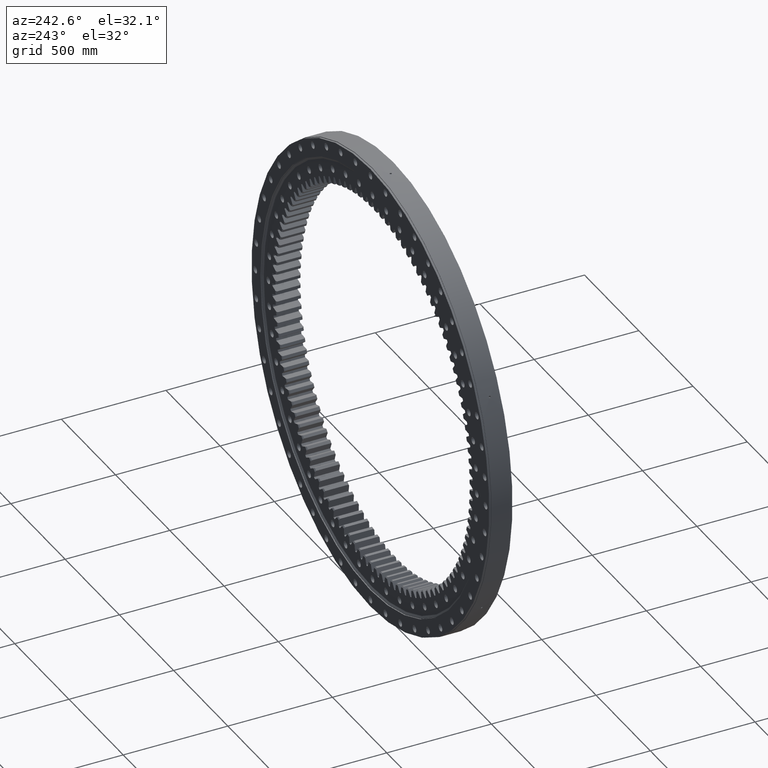
[diagram: clean part render]
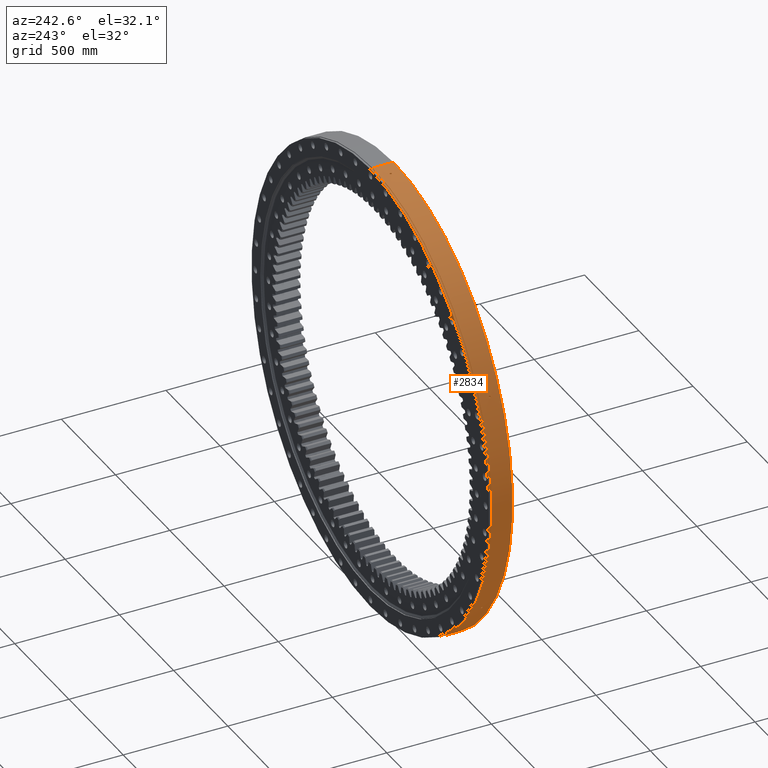
[diagram: same view with one face highlighted and labeled with its STEP entity id]
A machine part, auxiliary view. The second image highlights one B-rep face of the part: STEP entity #2834.
In plain terms, the highlighted cylindrical surface (partial cylindrical patch) has radius 1097.5 mm, axis along (0, -1, -0).
Its self-contained STEP definition (entity closure, byte-faithful):
#37 = DIRECTION ( 'NONE',  ( 5.551115123125782700E-017, -3.793472749288689700E-017, 1.000000000000000000 ) ) ;
#116 = CARTESIAN_POINT ( 'NONE',  ( -913.9983531601363900, -3.653221075930636700, -607.5468520026441900 ) ) ;
#207 = CARTESIAN_POINT ( 'NONE',  ( -985.9067901466742100, -2.765066982846177800, 482.1827982763670100 ) ) ;
#219 = CARTESIAN_POINT ( 'NONE',  ( -914.9056874165271400, -1.437042506694486700, -606.1795181664089100 ) ) ;
#263 = CARTESIAN_POINT ( 'NONE',  ( -911.0730735983328300, 3.665395689952945600, -611.9248949544651200 ) ) ;
#322 = CARTESIAN_POINT ( 'NONE',  ( -915.0302888720349300, -0.004604410396302612900, -605.9915880910176600 ) ) ;
#365 = CARTESIAN_POINT ( 'NONE',  ( -910.2214394108831400, 1.766153117482679900, -613.1909732783493600 ) ) ;
#374 = CARTESIAN_POINT ( 'NONE',  ( -982.3192627750760300, -2.316124068614225300E-008, 489.4436855857097200 ) ) ;
#689 = EDGE_LOOP ( 'NONE', ( #23213, #10348, #26129, #9866 ) ) ;
#787 = CARTESIAN_POINT ( 'NONE',  ( -982.3206432674303400, 0.5890485998995765900, 489.4443663618398000 ) ) ;
#798 = CARTESIAN_POINT ( 'NONE',  ( -912.5378995020402000, 4.499999983232279500, -609.7383307390179000 ) ) ;
#1109 = EDGE_CURVE ( 'NONE', #22896, #18330, #4989, .T. ) ;
#1141 = ORIENTED_EDGE ( 'NONE', *, *, #8543, .F. ) ;
#1239 = CARTESIAN_POINT ( 'NONE',  ( -915.0302968266446400, -2.316119924389100600E-008, -605.9915933971644800 ) ) ;
#1315 = CARTESIAN_POINT ( 'NONE',  ( -984.3178338321264400, 4.499999983232231500, 485.4118375153514600 ) ) ;
#1430 = CARTESIAN_POINT ( 'NONE',  ( -985.7534582128030300, 3.106787147588674800, 482.4897635423545200 ) ) ;
#1475 = CARTESIAN_POINT ( 'NONE',  ( -76.26932570167963400, -0.06349154273917784200, 1094.846838106214800 ) ) ;
#1545 = CARTESIAN_POINT ( 'NONE',  ( -986.2998584784061200, 0.0002739105558857477900, 481.3718296510459100 ) ) ;
#1585 = CARTESIAN_POINT ( 'NONE',  ( -72.36780016580453900, -4.500000016767684100, 1095.111637491822900 ) ) ;
#1838 = CARTESIAN_POINT ( 'NONE',  ( -910.0389320316016900, -0.3669906709228762900, -613.4633771851737300 ) ) ;
#1878 = CARTESIAN_POINT ( 'NONE',  ( -982.9579115456216400, -3.294402531885509700, 488.1597996851776900 ) ) ;
#1990 = CARTESIAN_POINT ( 'NONE',  ( -982.3218529169668000, -0.2514981093746388500, 489.4377634877358800 ) ) ;
#2033 = CARTESIAN_POINT ( 'NONE',  ( -75.27407875063740100, 2.828384377333859500, 1094.915564209302800 ) ) ;
#2048 = CARTESIAN_POINT ( 'NONE',  ( -68.72016813912141200, -3.294402531885272100, 1095.346422091994300 ) ) ;
#2071 = CARTESIAN_POINT ( 'NONE',  ( -67.40602675646908900, 1.177865457651629400, 1095.430496503789300 ) ) ;
#2162 = CARTESIAN_POINT ( 'NONE',  ( -67.29538970666170900, -0.2514981093709348100, 1095.434561062561400 ) ) ;
#2393 = CARTESIAN_POINT ( 'NONE',  ( -913.7961816037598100, 3.932038729790768200, -607.8534496682466400 ) ) ;
#2478 = DIRECTION ( 'NONE',  ( 5.551115123125782700E-017, -3.477350020181299200E-017, 1.000000000000000000 ) ) ;
#2570 = CARTESIAN_POINT ( 'NONE',  ( -986.2998616251126100, -0.001197594886368069400, 481.3718311277031600 ) ) ;
#2683 = CARTESIAN_POINT ( 'NONE',  ( -986.2998857379982400, -0.01755276374554877400, 481.3718786547948400 ) ) ;
#2704 = CARTESIAN_POINT ( 'NONE',  ( -914.1527883337825000, -3.431549365535419200, -607.3145009554203900 ) ) ;
#2790 = CARTESIAN_POINT ( 'NONE',  ( -985.3194361487727500, -3.931903492011158200, 483.3786156320769600 ) ) ;
#2804 = CARTESIAN_POINT ( 'NONE',  ( -915.0081998526879900, -0.6256154573444570000, -606.0243077831933100 ) ) ;
#2834 = ADVANCED_FACE ( 'NONE', ( #9518, #30062, #15549, #8700 ), #7877, .T. ) ;
#2848 = CARTESIAN_POINT ( 'NONE',  ( -910.7647910946448100, 3.179368269281404900, -612.3836586007282700 ) ) ;
#2960 = CARTESIAN_POINT ( 'NONE',  ( -910.0718148629449600, 0.8692179200563169300, -613.4125404365871600 ) ) ;
#3381 = CARTESIAN_POINT ( 'NONE',  ( -982.3192627750760300, -2.316124068614225300E-008, 489.4436855857097200 ) ) ;
#3961 = CARTESIAN_POINT ( 'NONE',  ( -5.868486117720982400E-015, 50.00000000000018500, 1.747108677692898100E-015 ) ) ;
#4048 = CARTESIAN_POINT ( 'NONE',  ( -985.8115134047013700, 2.962532599782218500, 482.3711464768900300 ) ) ;
#4087 = CARTESIAN_POINT ( 'NONE',  ( -76.26348067966030400, -0.2567128001458648900, 1094.847717071250100 ) ) ;
#4453 = CARTESIAN_POINT ( 'NONE',  ( -910.0636864029352200, -0.7327159428868192900, -613.4279300527642800 ) ) ;
#4487 = CARTESIAN_POINT ( 'NONE',  ( -982.9187859575646400, -3.209744189989990100, 488.2385789285842700 ) ) ;
#4540 = CARTESIAN_POINT ( 'NONE',  ( -73.54968862972964400, 4.146178172052867900, 1095.032633056343700 ) ) ;
#4570 = LINE ( 'NONE', #22469, #18230 ) ;
#4604 = CARTESIAN_POINT ( 'NONE',  ( -982.3196450843720400, -0.1107750201663606500, 489.4424631424344100 ) ) ;
#4643 = CARTESIAN_POINT ( 'NONE',  ( -75.54054835639667000, 2.468473075722514000, 1094.897229565538500 ) ) ;
#4664 = CARTESIAN_POINT ( 'NONE',  ( -68.63238051901193200, -3.209744189989848900, 1095.351927960502100 ) ) ;
#4685 = CARTESIAN_POINT ( 'NONE',  ( -68.18893718353885400, 2.765460220137770300, 1095.382454497346500 ) ) ;
#4772 = CARTESIAN_POINT ( 'NONE',  ( -67.29021577000645500, -0.1107750201643056800, 1095.434998850796800 ) ) ;
#4895 = EDGE_CURVE ( 'NONE', #10562, #21656, #14076, .T. ) ;
#4977 = CARTESIAN_POINT ( 'NONE',  ( -912.8651573828364000, 4.499999983232295400, -609.2485547087404700 ) ) ;
#4989 = B_SPLINE_CURVE_WITH_KNOTS ( 'NONE', 3,
 ( #7143, #12218, #25160, #9733, #27754, #12334, #30327, #14931, #32931, #17472, #2048, #20086, #4664, #22685, #7256, #25274, #9842, #27852, #12438, #30448, #15028, #33037, #17586, #2162, #20193, #4772, #22800, #7360, #25385, #9961, #27960, #12538, #30549, #15149 ),
 .UNSPECIFIED., .F., .F.,
 ( 4, 2, 2, 2, 2, 1, 1, 1, 2, 2, 2, 2, 2, 2, 2, 1, 1, 1, 2, 4 ),
 ( 0.0000000000000000000, 0.1250331954729593500, 0.1875497932094389900, 0.2188080920776799600, 0.2344372415118003700, 0.2422518162288597200, 0.2461591035873894100, 0.2481127472666542800, 0.2490895691062858800, 0.2500663909459174300, 0.3125829886823461300, 0.3750995864187748300, 0.4376161841552035900, 0.4688744830234181600, 0.4845036324575254800, 0.4923182071745789100, 0.4962254945331054900, 0.4981791382123685900, 0.4991559600520001400, 0.5001327818916316800 ),
 .UNSPECIFIED. ) ;
#5078 = CARTESIAN_POINT ( 'NONE',  ( 2.601341135008604100E-015, -22.16364734299516900, -7.744460120454373600E-016 ) ) ;
#5266 = CARTESIAN_POINT ( 'NONE',  ( -986.2998375697703800, -0.06357649274102340800, 481.3722466403592600 ) ) ;
#5282 = CARTESIAN_POINT ( 'NONE',  ( -914.2377434064957200, -3.294402531886514200, -607.1866224068198800 ) ) ;
#5378 = CARTESIAN_POINT ( 'NONE',  ( -984.5783949706922200, -4.500000016767765800, 484.8834717943866500 ) ) ;
#5381 = CARTESIAN_POINT ( 'NONE',  ( -984.3178338321264400, 4.499999983232231500, 485.4118375153514600 ) ) ;
#5390 = CARTESIAN_POINT ( 'NONE',  ( -915.0264632103010200, -0.2514981093664806500, -605.9967975748279500 ) ) ;
#5446 = CARTESIAN_POINT ( 'NONE',  ( -910.7550180371637200, 3.161731403690720900, -612.3981934056697600 ) ) ;
#5558 = CARTESIAN_POINT ( 'NONE',  ( -910.0310799738707600, 0.2391090795481765300, -613.4728444865407900 ) ) ;
#5601 = LINE ( 'NONE', #29065, #31394 ) ;
#5982 = CARTESIAN_POINT ( 'NONE',  ( -982.5751195479414300, 2.266285391154471800, 488.9365916808663400 ) ) ;
#6517 = CARTESIAN_POINT ( 'NONE',  ( -984.7336266233817200, 4.439742533584273500, 484.5678248661250800 ) ) ;
#6546 = DIRECTION ( 'NONE',  ( -5.551115123125783900E-017, 8.851436415006942600E-017, -1.000000000000000000 ) ) ;
#6558 = CARTESIAN_POINT ( 'NONE',  ( -76.26969609074194500, 0.0003013362411627479000, 1094.846647981330800 ) ) ;
#6628 = CARTESIAN_POINT ( 'NONE',  ( -985.8928044853022400, 2.738265013290725600, 482.2050035439830800 ) ) ;
#6634 = ORIENTED_EDGE ( 'NONE', *, *, #7051, .F. ) ;
#6670 = CARTESIAN_POINT ( 'NONE',  ( -76.23388014724879700, -0.5867728063061658000, 1094.850474504257100 ) ) ;
#6816 = ORIENTED_EDGE ( 'NONE', *, *, #23480, .F. ) ;
#7021 = DIRECTION ( 'NONE',  ( 1.173697223544192200E-016, -1.000000000000000000, -3.494217355385783800E-017 ) ) ;
#7035 = CARTESIAN_POINT ( 'NONE',  ( -910.1606035168869100, -1.449327386706999100, -613.2858246215707800 ) ) ;
#7051 = EDGE_CURVE ( 'NONE', #16084, #27070, #27489, .T. ) ;
#7075 = CARTESIAN_POINT ( 'NONE',  ( -982.9095417438204500, -3.189160232434603300, 488.2571891373639200 ) ) ;
#7128 = CARTESIAN_POINT ( 'NONE',  ( -74.40593309462235500, 3.665419903802092700, 1094.974876245399200 ) ) ;
#7143 = CARTESIAN_POINT ( 'NONE',  ( -71.77993433008211400, -4.500000016767683200, 1095.150168254367400 ) ) ;
#7176 = B_SPLINE_CURVE_WITH_KNOTS ( 'NONE', 3,
 ( #17348, #32806, #19963, #4540, #22566, #7128, #25143, #9718, #27743, #12315, #30317, #14913, #32918, #17456, #2033, #20072, #4643, #22673, #7236, #25266, #9825, #27839, #12424, #30429, #15015 ),
 .UNSPECIFIED., .F., .F.,
 ( 4, 2, 2, 2, 2, 1, 1, 1, 2, 2, 2, 2, 2, 4 ),
 ( 0.0000000000000000000, 0.1250443681645245500, 0.1875665522467869200, 0.2500887363290493200, 0.2510656454553369400, 0.2520425545816245600, 0.2539963728341999000, 0.2579040093393506500, 0.2657192823496546400, 0.2813498283702639500, 0.3126109204114837500, 0.3751331044939232300, 0.4376552885763627700, 0.5001774726588023000 ),
 .UNSPECIFIED. ) ;
#7193 = CARTESIAN_POINT ( 'NONE',  ( -982.3192580813591800, -0.04507714349217240700, 489.4434691178562400 ) ) ;
#7236 = CARTESIAN_POINT ( 'NONE',  ( -75.92821301896074700, 1.766218312890730500, 1094.870378157965900 ) ) ;
#7256 = CARTESIAN_POINT ( 'NONE',  ( -68.61164149856722400, -3.189160232434481700, 1095.353227340951900 ) ) ;
#7277 = CARTESIAN_POINT ( 'NONE',  ( -69.51843838882214800, 3.932038729790762400, 1095.297431984198300 ) ) ;
#7360 = CARTESIAN_POINT ( 'NONE',  ( -67.28915106822913100, -0.04507714349119536200, 1095.435166684067600 ) ) ;
#7461 = VERTEX_POINT ( 'NONE', #8913 ) ;
#7479 = CARTESIAN_POINT ( 'NONE',  ( -915.0315766422445400, 0.5890485998996258800, -605.9924485505480300 ) ) ;
#7578 = VERTEX_POINT ( 'NONE', #32562 ) ;
#7707 = CARTESIAN_POINT ( 'NONE',  ( -67.28896594842734700, -2.316116566332855500E-008, 1095.435278982872200 ) ) ;
#7752 = B_SPLINE_CURVE_WITH_KNOTS ( 'NONE', 3,
 ( #19794, #32647, #24986, #9567, #27588, #12153, #30164, #14759, #32753, #17303, #1878, #19917, #4487, #22526, #7075, #25096, #9670, #27699, #12271, #30272, #14868, #32868, #17409, #1990, #20026, #4604, #22628, #7193, #25211, #9780, #27803, #12383, #30379, #14971 ),
 .UNSPECIFIED., .F., .F.,
 ( 4, 2, 2, 2, 2, 1, 1, 1, 2, 2, 2, 2, 2, 2, 2, 1, 1, 1, 2, 4 ),
 ( 0.0000000000000000000, 0.1250331954728097500, 0.1875497932092146400, 0.2188080920774170500, 0.2344372415115182400, 0.2422518162285656800, 0.2461591035870894500, 0.2481127472663513500, 0.2490895691059822900, 0.2500663909456132300, 0.3125829886821189800, 0.3750995864186247300, 0.4376161841551305400, 0.4688744830233819200, 0.4845036324575067200, 0.4923182071745690900, 0.4962254945331004400, 0.4981791382123660900, 0.4991559600519988600, 0.5001327818916315700 ),
 .UNSPECIFIED. ) ;
#7822 = B_SPLINE_CURVE_WITH_KNOTS ( 'NONE', 3,
 ( #30954, #2570, #18111, #2683, #20708, #5266, #23293, #7872, #25889, #10468, #28483, #13049, #31060, #15646, #207, #18207, #2790, #20820, #5378, #23391 ),
 .UNSPECIFIED., .F., .F.,
 ( 4, 2, 1, 1, 1, 1, 2, 2, 2, 2, 2, 4 ),
 ( 0.5001835344710241500, 0.5011597385052604100, 0.5021359425394965600, 0.5040883506079691900, 0.5079931667449142400, 0.5158027990188045500, 0.5314220635665850600, 0.5626605926621450800, 0.6251376508532672200, 0.7500917672355114100, 0.8750458836177557000, 1.000000000000000000 ),
 .UNSPECIFIED. ) ;
#7872 = CARTESIAN_POINT ( 'NONE',  ( -986.2976746891968100, -0.2567952966224520400, 481.3777512283240300 ) ) ;
#7877 = CYLINDRICAL_SURFACE ( 'NONE', #22220, 1097.500000000000000 ) ;
#7887 = CARTESIAN_POINT ( 'NONE',  ( -914.2864054385484000, -3.209744189990194400, -607.1133490319203900 ) ) ;
#7988 = CARTESIAN_POINT ( 'NONE',  ( -915.0294293143614400, -0.1107750201618759000, -605.9925357083647000 ) ) ;
#8033 = CARTESIAN_POINT ( 'NONE',  ( -910.7251214000258400, 3.106787147588770300, -612.4426549094746400 ) ) ;
#8137 = CARTESIAN_POINT ( 'NONE',  ( -910.0301623832026500, 0.0002739105559246185000, -613.4748183657754900 ) ) ;
#8442 = EDGE_CURVE ( 'NONE', #18330, #7461, #22985, .T. ) ;
#8543 = EDGE_CURVE ( 'NONE', #25917, #18128, #16092, .T. ) ;
#8573 = CARTESIAN_POINT ( 'NONE',  ( -983.0933237521187500, 3.598500772398880900, 487.8914237260645500 ) ) ;
#8700 = FACE_OUTER_BOUND ( 'NONE', #15106, .T. ) ;
#8913 = CARTESIAN_POINT ( 'NONE',  ( -71.77993433008209900, 4.499999983232317600, 1095.150168254367100 ) ) ;
#9001 = EDGE_CURVE ( 'NONE', #13472, #13326, #30739, .T. ) ;
#9121 = CARTESIAN_POINT ( 'NONE',  ( -985.2275887199634800, 4.014239081971577000, 483.5624786500545700 ) ) ;
#9233 = CARTESIAN_POINT ( 'NONE',  ( -986.0274945826881800, 2.289046086586632000, 481.9295443951339700 ) ) ;
#9272 = CARTESIAN_POINT ( 'NONE',  ( -76.12647023853884300, -1.166011393763531200, 1094.858875202454300 ) ) ;
#9283 = CARTESIAN_POINT ( 'NONE',  ( -1.953284746827274800E-013, 50.00000000000027700, -1097.500000000000000 ) ) ;
#9518 = FACE_BOUND ( 'NONE', #13758, .T. ) ;
#9525 = CARTESIAN_POINT ( 'NONE',  ( -910.0301623832026500, 0.0002739105559246185000, -613.4748183657754900 ) ) ;
#9567 = CARTESIAN_POINT ( 'NONE',  ( -983.5313678045193900, -4.145600874871408200, 487.0031540103628900 ) ) ;
#9630 = CARTESIAN_POINT ( 'NONE',  ( -910.5359476485369900, -2.765066982846160000, -612.7289268924121200 ) ) ;
#9648 = AXIS2_PLACEMENT_3D ( 'NONE', #30896, #15490, #37 ) ;
#9670 = CARTESIAN_POINT ( 'NONE',  ( -982.7501861730173700, -2.830677788876081900, 488.5779815686597100 ) ) ;
#9718 = CARTESIAN_POINT ( 'NONE',  ( -74.95737118444952800, 3.179406900856913200, 1094.937277895024000 ) ) ;
#9733 = CARTESIAN_POINT ( 'NONE',  ( -70.00858080613636500, -4.145600874870764200, 1095.264726942751600 ) ) ;
#9780 = CARTESIAN_POINT ( 'NONE',  ( -982.3192442835121500, -0.01171491839999234100, 489.4436614379087600 ) ) ;
#9825 = CARTESIAN_POINT ( 'NONE',  ( -76.19492415037817100, 0.8692775448675168500, 1094.851581973226100 ) ) ;
#9842 = CARTESIAN_POINT ( 'NONE',  ( -68.25414931832011700, -2.830677788874444100, 1095.375617584049500 ) ) ;
#9863 = CARTESIAN_POINT ( 'NONE',  ( -71.19214690529918200, 4.499999983232316800, 1095.188693877587000 ) ) ;
#9866 = ORIENTED_EDGE ( 'NONE', *, *, #31126, .F. ) ;
#9961 = CARTESIAN_POINT ( 'NONE',  ( -67.28897761525472300, -0.01171491839969277000, 1095.435250894807700 ) ) ;
#10100 = B_SPLINE_CURVE_WITH_KNOTS ( 'NONE', 3,
 ( #1315, #24431, #6517, #24540, #9121, #27142, #11714, #29713, #14303, #32308, #16871, #1430, #19465, #4048, #22074, #6628, #24656, #9233, #27262, #11824, #29833, #14419, #32423, #16967, #1545 ),
 .UNSPECIFIED., .F., .F.,
 ( 4, 2, 2, 2, 2, 1, 1, 1, 2, 2, 2, 2, 2, 4 ),
 ( 0.0000000000000000000, 0.1250458836176113500, 0.1875688254264169800, 0.2500917672352225800, 0.2510686882009888200, 0.2520456091667549500, 0.2539994510982873700, 0.2579071349613475900, 0.2657225026874637200, 0.2813532381397004200, 0.3126147090441736000, 0.3751376508531237300, 0.4376605926620739700, 0.5001835344710241500 ),
 .UNSPECIFIED. ) ;
#10348 = ORIENTED_EDGE ( 'NONE', *, *, #4895, .F. ) ;
#10382 = CARTESIAN_POINT ( 'NONE',  ( -912.7758016205319800, -4.500000016767726800, -609.3822850575335200 ) ) ;
#10468 = CARTESIAN_POINT ( 'NONE',  ( -986.2852599496775400, -0.5868507657524449900, 481.4047697427798200 ) ) ;
#10484 = CARTESIAN_POINT ( 'NONE',  ( -914.2979002452494800, -3.189160232434586000, -607.0960382035901800 ) ) ;
#10562 = VERTEX_POINT ( 'NONE', #374 ) ;
#10593 = CARTESIAN_POINT ( 'NONE',  ( -915.0301070131257600, -0.04507714349008253700, -605.9916975662131300 ) ) ;
#10640 = CARTESIAN_POINT ( 'NONE',  ( -910.6514236039604400, 2.962532599782676800, -612.5522407132116300 ) ) ;
#10898 = CARTESIAN_POINT ( 'NONE',  ( 6.679197459402640700E-014, -49.99999999999991500, 1097.500000000000000 ) ) ;
#10900 = EDGE_CURVE ( 'NONE', #7578, #22896, #31346, .T. ) ;
#10984 = B_SPLINE_CURVE_WITH_KNOTS ( 'NONE', 3,
 ( #25804, #10382, #28390, #12958, #30973, #15557, #116, #18124, #2704, #20726, #5282, #23308, #7887, #25910, #10484, #28501, #13070, #31075, #15665, #219, #18231, #2804, #20840, #5390, #23409, #7988, #26016, #10593, #28609, #13184, #31187, #15766, #322, #18339 ),
 .UNSPECIFIED., .F., .F.,
 ( 4, 2, 2, 2, 2, 1, 1, 1, 2, 2, 2, 2, 2, 2, 2, 1, 1, 1, 2, 4 ),
 ( 0.0000000000000000000, 0.1250331954734084100, 0.1875497932101279900, 0.2188080920784926900, 0.2344372415126707900, 0.2422518162297539200, 0.2461591035882955100, 0.2481127472675663000, 0.2490895691071980100, 0.2500663909468297500, 0.3125829886830289700, 0.3750995864192282500, 0.4376161841554274700, 0.4688744830235285200, 0.4845036324575790500, 0.4923182071746036200, 0.4962254945331158200, 0.4981791382123719700, 0.4991559600519998600, 0.5001327818916278000 ),
 .UNSPECIFIED. ) ;
#11182 = CARTESIAN_POINT ( 'NONE',  ( -983.7967049649475900, 4.382877028017116300, 486.4681479959192500 ) ) ;
#11218 = B_SPLINE_CURVE_WITH_KNOTS ( 'NONE', 3,
 ( #18166, #23353, #13116, #31124, #15710, #263, #18278, #2848, #20883, #5446, #23459, #8033, #26071, #10640, #28652, #13224, #31241, #15815, #365, #18387, #2960, #20988, #5558, #23573, #8137 ),
 .UNSPECIFIED., .F., .F.,
 ( 4, 2, 2, 2, 2, 1, 1, 1, 2, 2, 2, 2, 2, 4 ),
 ( 0.0000000000000000000, 0.1250458836182026500, 0.1875688254272947500, 0.2500917672363868700, 0.2510686882021450100, 0.2520456091679031400, 0.2539994510994192900, 0.2579071349624598200, 0.2657225026885490200, 0.2813532381407141700, 0.3126147090450444600, 0.3751376508537050400, 0.4376605926623656200, 0.5001835344710262600 ),
 .UNSPECIFIED. ) ;
#11714 = CARTESIAN_POINT ( 'NONE',  ( -985.6038375363446000, 3.448307353393814900, 482.7953972152942600 ) ) ;
#11824 = CARTESIAN_POINT ( 'NONE',  ( -986.2005871585284900, 1.438897800857173300, 481.5749469000740000 ) ) ;
#11864 = CARTESIAN_POINT ( 'NONE',  ( -75.70361559346888200, -2.265740046340280600, 1094.888950679138400 ) ) ;
#12121 = CARTESIAN_POINT ( 'NONE',  ( -910.0302184514903300, -0.01755276374553150700, -613.4748174714008000 ) ) ;
#12153 = CARTESIAN_POINT ( 'NONE',  ( -983.2133995699814500, -3.751236185467601700, 487.6448858164396300 ) ) ;
#12218 = CARTESIAN_POINT ( 'NONE',  ( -71.35263866575462500, -4.500000016767685000, 1095.178174691853700 ) ) ;
#12231 = CARTESIAN_POINT ( 'NONE',  ( -911.2778788579174700, -3.931903492011132000, -611.6223547313601300 ) ) ;
#12271 = CARTESIAN_POINT ( 'NONE',  ( -982.4714478278597200, -1.763920141874851100, 489.1381098277181500 ) ) ;
#12315 = CARTESIAN_POINT ( 'NONE',  ( -74.97483317654973700, 3.161782693561369300, 1094.936082406576800 ) ) ;
#12334 = CARTESIAN_POINT ( 'NONE',  ( -69.29384064238880100, -3.751236185466983600, 1095.310224277084200 ) ) ;
#12383 = CARTESIAN_POINT ( 'NONE',  ( -982.3192558904427200, -0.004224009619599179200, 489.4436802472337100 ) ) ;
#12424 = CARTESIAN_POINT ( 'NONE',  ( -76.26752583493464500, 0.2391524331522856300, 1094.846455859270700 ) ) ;
#12438 = CARTESIAN_POINT ( 'NONE',  ( -67.62969484401821800, -1.763920141869317800, 1095.414287225663400 ) ) ;
#12538 = CARTESIAN_POINT ( 'NONE',  ( -67.28896712936649700, -0.004224009619468490300, 1095.435270351367500 ) ) ;
#12958 = CARTESIAN_POINT ( 'NONE',  ( -913.5227869983722300, -4.145600874875820600, -608.2615729323997600 ) ) ;
#13049 = CARTESIAN_POINT ( 'NONE',  ( -986.2388264525626500, -1.166080515061564500, 481.5019973531435100 ) ) ;
#13070 = CARTESIAN_POINT ( 'NONE',  ( -914.4960368546936700, -2.830677788872586900, -606.7976360153893400 ) ) ;
#13116 = CARTESIAN_POINT ( 'NONE',  ( -912.0148595022986900, 4.439742533575234500, -610.5204241836040600 ) ) ;
#13184 = CARTESIAN_POINT ( 'NONE',  ( -915.0302666682540600, -0.01171491839941662600, -605.9915894569015800 ) ) ;
#13224 = CARTESIAN_POINT ( 'NONE',  ( -910.5481851437044700, 2.738265013291686600, -612.7057123205664800 ) ) ;
#13258 = VERTEX_POINT ( 'NONE', #31230 ) ;
#13326 = VERTEX_POINT ( 'NONE', #798 ) ;
#13472 = VERTEX_POINT ( 'NONE', #1239 ) ;
#13556 = CARTESIAN_POINT ( 'NONE',  ( -910.0301623832026500, 0.0002739105559246185000, -613.4748183657754900 ) ) ;
#13758 = EDGE_LOOP ( 'NONE', ( #29750, #22156, #22550, #21475 ) ) ;
#13767 = CARTESIAN_POINT ( 'NONE',  ( -984.3178338321264400, 4.499999983232231500, 485.4118375153514600 ) ) ;
#14075 = EDGE_CURVE ( 'NONE', #21656, #13258, #10100, .T. ) ;
#14076 = B_SPLINE_CURVE_WITH_KNOTS ( 'NONE', 3,
 ( #3381, #787, #16230, #5982, #24000, #8573, #26609, #11182, #29180, #13767 ),
 .UNSPECIFIED., .F., .F.,
 ( 4, 2, 2, 2, 4 ),
 ( 0.5001327818916315700, 0.6250995864187236500, 0.7500663909458157300, 0.8750331954729078100, 1.000000000000000000 ),
 .UNSPECIFIED. ) ;
#14303 = CARTESIAN_POINT ( 'NONE',  ( -985.7251285425875300, 3.172688483100339200, 482.5476360061814500 ) ) ;
#14313 = ORIENTED_EDGE ( 'NONE', *, *, #9001, .F. ) ;
#14346 = CARTESIAN_POINT ( 'NONE',  ( -76.26969229480930300, -0.008262173991291017400, 1094.846670228107500 ) ) ;
#14419 = CARTESIAN_POINT ( 'NONE',  ( -986.2821925867024200, 0.6262484178160846500, 481.4072132916848000 ) ) ;
#14463 = CARTESIAN_POINT ( 'NONE',  ( -74.53969368091156900, -3.598266612401580300, 1094.967742767790000 ) ) ;
#14503 = EDGE_CURVE ( 'NONE', #16298, #26989, #22362, .T. ) ;
#14713 = CARTESIAN_POINT ( 'NONE',  ( -910.0305130522233400, -0.06357649274100661600, -613.4745917637096700 ) ) ;
#14759 = CARTESIAN_POINT ( 'NONE',  ( -983.0569775509120500, -3.489101555534768600, 487.9602301565210500 ) ) ;
#14834 = CARTESIAN_POINT ( 'NONE',  ( -912.2106019344788600, -4.500000016767724100, -610.2281661647371000 ) ) ;
#14868 = CARTESIAN_POINT ( 'NONE',  ( -982.3523473417295700, -0.8681623217995192400, 489.3766613767351700 ) ) ;
#14913 = CARTESIAN_POINT ( 'NONE',  ( -75.02828705200603600, 3.106839413346385000, 1094.932421860568400 ) ) ;
#14931 = CARTESIAN_POINT ( 'NONE',  ( -68.94253342340445600, -3.489101555534336100, 1095.332431004899000 ) ) ;
#14971 = CARTESIAN_POINT ( 'NONE',  ( -982.3192627750760300, -2.316124068614225300E-008, 489.4436855857097200 ) ) ;
#15015 = CARTESIAN_POINT ( 'NONE',  ( -76.26969609074194500, 0.0003013362411627479000, 1094.846647981330800 ) ) ;
#15028 = CARTESIAN_POINT ( 'NONE',  ( -67.36355289939355400, -0.8681623217930742900, 1095.430418953580300 ) ) ;
#15106 = EDGE_LOOP ( 'NONE', ( #23887, #28522, #1141, #15270 ) ) ;
#15149 = CARTESIAN_POINT ( 'NONE',  ( -67.28896594842734700, -2.316116566332855500E-008, 1095.435278982872200 ) ) ;
#15249 = CARTESIAN_POINT ( 'NONE',  ( -914.7190690093785900, 2.266285391154542400, -606.4667188146183900 ) ) ;
#15270 = ORIENTED_EDGE ( 'NONE', *, *, #19604, .F. ) ;
#15490 = DIRECTION ( 'NONE',  ( 1.173697223544192200E-016, -1.000000000000000000, -3.494217355385783800E-017 ) ) ;
#15549 = FACE_BOUND ( 'NONE', #29628, .T. ) ;
#15557 = CARTESIAN_POINT ( 'NONE',  ( -913.9195589275849400, -3.751236185471740200, -607.6653384606515800 ) ) ;
#15646 = CARTESIAN_POINT ( 'NONE',  ( -986.0534403843551000, -2.265789637349589800, 481.8832477075454200 ) ) ;
#15665 = CARTESIAN_POINT ( 'NONE',  ( -914.8417529838382100, -1.763920141862647800, -606.2761773979431200 ) ) ;
#15710 = CARTESIAN_POINT ( 'NONE',  ( -911.3911851878782500, 4.014239081952905700, -611.4508810157797100 ) ) ;
#15766 = CARTESIAN_POINT ( 'NONE',  ( -915.0302887610721400, -0.004224009619399775300, -605.9915901041353000 ) ) ;
#15815 = CARTESIAN_POINT ( 'NONE',  ( -910.3769755717896700, 2.289046086588534500, -612.9600869409652000 ) ) ;
#16084 = VERTEX_POINT ( 'NONE', #13556 ) ;
#16092 = CIRCLE ( 'NONE', #9648, 1097.500000000000000 ) ;
#16230 = CARTESIAN_POINT ( 'NONE',  ( -982.3736514307178100, 1.177865457651555500, 489.3399167126165700 ) ) ;
#16298 = VERTEX_POINT ( 'NONE', #9283 ) ;
#16871 = CARTESIAN_POINT ( 'NONE',  ( -985.7370315257696800, 3.145279995475245700, 482.5233209583109900 ) ) ;
#16907 = CARTESIAN_POINT ( 'NONE',  ( -76.26960942750646700, -0.03127480072901468000, 1094.846735713765200 ) ) ;
#16967 = CARTESIAN_POINT ( 'NONE',  ( -986.2996354738332900, 0.09451942255395572000, 481.3717260987600100 ) ) ;
#17008 = CARTESIAN_POINT ( 'NONE',  ( -72.95542200465546000, -4.382845426488168000, 1095.072930058905500 ) ) ;
#17268 = CARTESIAN_POINT ( 'NONE',  ( -910.0341987249510100, -0.2567952966224346100, -613.4699663602049200 ) ) ;
#17303 = CARTESIAN_POINT ( 'NONE',  ( -982.9805699199401900, -3.340846870250868700, 488.1141639011501600 ) ) ;
#17348 = CARTESIAN_POINT ( 'NONE',  ( -71.77993433008209900, 4.499999983232317600, 1095.150168254367100 ) ) ;
#17409 = CARTESIAN_POINT ( 'NONE',  ( -982.3240807790813300, -0.3358843994510635800, 489.4332346883418800 ) ) ;
#17456 = CARTESIAN_POINT ( 'NONE',  ( -75.16004213460516300, 2.962587233154111700, 1094.923390459915000 ) ) ;
#17472 = CARTESIAN_POINT ( 'NONE',  ( -68.77101907457013400, -3.340846870250575100, 1095.343226927748900 ) ) ;
#17586 = CARTESIAN_POINT ( 'NONE',  ( -67.30042569304247000, -0.3358843994466900700, 1095.434226048051600 ) ) ;
#17812 = CARTESIAN_POINT ( 'NONE',  ( -914.0730291113874300, 3.598500772398953300, -607.4380807971841700 ) ) ;
#18111 = CARTESIAN_POINT ( 'NONE',  ( -986.2998759440571300, -0.008347800967169414700, 481.3718442884480700 ) ) ;
#18124 = CARTESIAN_POINT ( 'NONE',  ( -914.1144441275015400, -3.489101555537379000, -607.3722008483830500 ) ) ;
#18128 = VERTEX_POINT ( 'NONE', #19664 ) ;
#18166 = CARTESIAN_POINT ( 'NONE',  ( -912.5378995020402000, 4.499999983232279500, -609.7383307390179000 ) ) ;
#18207 = CARTESIAN_POINT ( 'NONE',  ( -985.5397155083871900, -3.598287907840552100, 482.9306292956508200 ) ) ;
#18230 = VECTOR ( 'NONE', #7021, 1000.000000000000000 ) ;
#18231 = CARTESIAN_POINT ( 'NONE',  ( -914.9887944423327300, -0.8681623217852639800, -606.0537575768452100 ) ) ;
#18278 = CARTESIAN_POINT ( 'NONE',  ( -910.9149975868085700, 3.448307353383556000, -612.1602627662683700 ) ) ;
#18330 = VERTEX_POINT ( 'NONE', #7707 ) ;
#18339 = CARTESIAN_POINT ( 'NONE',  ( -915.0302968266446400, -2.316119924389100600E-008, -605.9915933971644800 ) ) ;
#18387 = CARTESIAN_POINT ( 'NONE',  ( -910.1564314208694700, 1.438897800860372600, -613.2872882563795000 ) ) ;
#18896 = CARTESIAN_POINT ( 'NONE',  ( -912.5378995020406600, -4.500000016767721400, -609.7383307390180100 ) ) ;
#19465 = CARTESIAN_POINT ( 'NONE',  ( -985.7854784900438300, 3.029410501800622300, 482.4243453701184300 ) ) ;
#19506 = CARTESIAN_POINT ( 'NONE',  ( -76.26816636176035000, -0.1279178715666566500, 1094.847080697748700 ) ) ;
#19604 = EDGE_CURVE ( 'NONE', #26989, #25917, #5601, .T. ) ;
#19621 = CARTESIAN_POINT ( 'NONE',  ( -71.77993433008211400, -4.500000016767683200, 1095.150168254367400 ) ) ;
#19664 = CARTESIAN_POINT ( 'NONE',  ( -1.953284746827274800E-013, -49.99999999999982900, -1097.500000000000000 ) ) ;
#19794 = CARTESIAN_POINT ( 'NONE',  ( -984.3178338321266700, -4.500000016767769400, 485.4118375153515800 ) ) ;
#19874 = CARTESIAN_POINT ( 'NONE',  ( -910.0513900750827400, -0.5868507657524291200, -613.4457056231716500 ) ) ;
#19917 = CARTESIAN_POINT ( 'NONE',  ( -982.9317746488632100, -3.238286653578257300, 488.2124284880121100 ) ) ;
#19963 = CARTESIAN_POINT ( 'NONE',  ( -72.71875459663502300, 4.439743989449485000, 1095.088249879914000 ) ) ;
#20001 = CARTESIAN_POINT ( 'NONE',  ( -67.28906662518150500, 0.5890485998996504200, 1095.436814912385700 ) ) ;
#20026 = CARTESIAN_POINT ( 'NONE',  ( -982.3200069500621800, -0.1436213954471314000, 489.4416570040312400 ) ) ;
#20072 = CARTESIAN_POINT ( 'NONE',  ( -75.34457512836293300, 2.738322835583632700, 1094.910718904750000 ) ) ;
#20086 = CARTESIAN_POINT ( 'NONE',  ( -68.66152181051666000, -3.238286653578080500, 1095.350101276842900 ) ) ;
#20117 = CARTESIAN_POINT ( 'NONE',  ( -67.85605053855887500, 2.266285391154542000, 1095.403310495482400 ) ) ;
#20193 = CARTESIAN_POINT ( 'NONE',  ( -67.29109483918752200, -0.1436213954446396200, 1095.434909166475800 ) ) ;
#20413 = CARTESIAN_POINT ( 'NONE',  ( -913.1921267789061900, 4.382877028017182000, -608.7588646611116000 ) ) ;
#20708 = CARTESIAN_POINT ( 'NONE',  ( -986.2998910283799900, -0.03136014695212321900, 481.3719491871174800 ) ) ;
#20726 = CARTESIAN_POINT ( 'NONE',  ( -914.2095508453654700, -3.340846870252283600, -607.2290630266024900 ) ) ;
#20820 = CARTESIAN_POINT ( 'NONE',  ( -984.8386811201742100, -4.382848303121724200, 484.3552290352109300 ) ) ;
#20840 = CARTESIAN_POINT ( 'NONE',  ( -915.0236550860340700, -0.3358843994414146800, -606.0009913597115200 ) ) ;
#20883 = CARTESIAN_POINT ( 'NONE',  ( -910.7610755887719700, 3.172688483100321000, -612.3891844634736100 ) ) ;
#20988 = CARTESIAN_POINT ( 'NONE',  ( -910.0519725690230600, 0.6262484178191745100, -613.4418274344600400 ) ) ;
#21475 = ORIENTED_EDGE ( 'NONE', *, *, #10900, .F. ) ;
#21656 = VERTEX_POINT ( 'NONE', #5381 ) ;
#21963 = EDGE_CURVE ( 'NONE', #23304, #10562, #7752, .T. ) ;
#21993 = DIRECTION ( 'NONE',  ( -1.173697223544192200E-016, 1.000000000000000000, 8.822830751849692900E-017 ) ) ;
#22074 = CARTESIAN_POINT ( 'NONE',  ( -985.8617530819088900, 2.828327746180794300, 482.2684765721933800 ) ) ;
#22115 = CARTESIAN_POINT ( 'NONE',  ( -76.25540953249846200, -0.3669096589404750600, 1094.848521529743500 ) ) ;
#22156 = ORIENTED_EDGE ( 'NONE', *, *, #8442, .F. ) ;
#22220 = AXIS2_PLACEMENT_3D ( 'NONE', #5078, #28182, #2478 ) ;
#22281 = CARTESIAN_POINT ( 'NONE',  ( -984.3178338321266700, -4.500000016767769400, 485.4118375153515800 ) ) ;
#22362 = CIRCLE ( 'NONE', #29598, 1097.500000000000000 ) ;
#22469 = CARTESIAN_POINT ( 'NONE',  ( -1.927271335477188600E-013, -22.16364734299513000, -1097.500000000000000 ) ) ;
#22489 = CARTESIAN_POINT ( 'NONE',  ( -910.1123749070495700, -1.166080515061548500, -613.3568792299020100 ) ) ;
#22526 = CARTESIAN_POINT ( 'NONE',  ( -982.9132370363234900, -3.197407695075983500, 488.2497499700656400 ) ) ;
#22550 = ORIENTED_EDGE ( 'NONE', *, *, #1109, .F. ) ;
#22562 = EDGE_CURVE ( 'NONE', #27070, #13472, #10984, .T. ) ;
#22566 = CARTESIAN_POINT ( 'NONE',  ( -73.83637575317708000, 4.014252917013377200, 1095.013361535499600 ) ) ;
#22628 = CARTESIAN_POINT ( 'NONE',  ( -982.3193461676380600, -0.06619500811106868200, 489.4432111948704600 ) ) ;
#22673 = CARTESIAN_POINT ( 'NONE',  ( -75.65048227638743600, 2.289108544685127400, 1094.889633876651000 ) ) ;
#22685 = CARTESIAN_POINT ( 'NONE',  ( -68.61993165268174300, -3.197407695075853400, 1095.352707974484900 ) ) ;
#22711 = CARTESIAN_POINT ( 'NONE',  ( -69.02029464072720100, 3.598500772398946600, 1095.329504523246900 ) ) ;
#22800 = CARTESIAN_POINT ( 'NONE',  ( -67.28941847922662600, -0.06619500810972192600, 1095.435114007530300 ) ) ;
#22896 = VERTEX_POINT ( 'NONE', #27490 ) ;
#22985 = B_SPLINE_CURVE_WITH_KNOTS ( 'NONE', 3,
 ( #30352, #20001, #2071, #20117, #4685, #22711, #7277, #25298, #9863, #27869 ),
 .UNSPECIFIED., .F., .F.,
 ( 4, 2, 2, 2, 4 ),
 ( 0.5001327818916316800, 0.6250995864187237600, 0.7500663909458158400, 0.8750331954729079200, 1.000000000000000000 ),
 .UNSPECIFIED. ) ;
#23002 = CARTESIAN_POINT ( 'NONE',  ( -912.5378995020402000, 4.499999983232279500, -609.7383307390179000 ) ) ;
#23213 = ORIENTED_EDGE ( 'NONE', *, *, #14075, .F. ) ;
#23293 = CARTESIAN_POINT ( 'NONE',  ( -986.2994674563673200, -0.1280020180878317400, 481.3733730274207700 ) ) ;
#23304 = VERTEX_POINT ( 'NONE', #22281 ) ;
#23308 = CARTESIAN_POINT ( 'NONE',  ( -914.2702528383422300, -3.238286653578727100, -607.1376727888331300 ) ) ;
#23353 = CARTESIAN_POINT ( 'NONE',  ( -912.3000894637186800, 4.499999983232268800, -610.0942386127899200 ) ) ;
#23391 = CARTESIAN_POINT ( 'NONE',  ( -984.3178338321266700, -4.500000016767769400, 485.4118375153515800 ) ) ;
#23409 = CARTESIAN_POINT ( 'NONE',  ( -915.0289121108706900, -0.1436213954416731300, -605.9932521624465400 ) ) ;
#23459 = CARTESIAN_POINT ( 'NONE',  ( -910.7459696312128000, 3.145279995475287500, -612.4116502732250600 ) ) ;
#23480 = EDGE_CURVE ( 'NONE', #13326, #16084, #11218, .T. ) ;
#23573 = CARTESIAN_POINT ( 'NONE',  ( -910.0299612020066900, 0.09451942255511892900, -613.4746770142937700 ) ) ;
#23765 = EDGE_CURVE ( 'NONE', #16298, #18128, #4570, .T. ) ;
#23887 = ORIENTED_EDGE ( 'NONE', *, *, #14503, .F. ) ;
#24000 = CARTESIAN_POINT ( 'NONE',  ( -982.7235010462245600, 2.765460220137703700, 488.6378753906648700 ) ) ;
#24431 = CARTESIAN_POINT ( 'NONE',  ( -984.5071540730461900, 4.499999983232228800, 485.0279340440298500 ) ) ;
#24540 = CARTESIAN_POINT ( 'NONE',  ( -985.1009330973284900, 4.146168226463755600, 483.8203961906033900 ) ) ;
#24585 = CARTESIAN_POINT ( 'NONE',  ( -76.26969639224088800, -0.001170350769876030000, 1094.846651408139900 ) ) ;
#24656 = CARTESIAN_POINT ( 'NONE',  ( -985.9791070481480800, 2.468412118951885500, 482.0285450273772200 ) ) ;
#24697 = CARTESIAN_POINT ( 'NONE',  ( -76.21234013943370700, -0.7326401299024965000, 1094.852235512235700 ) ) ;
#24950 = CARTESIAN_POINT ( 'NONE',  ( -910.0301652353788300, -0.001197594886344633700, -613.4748203525747400 ) ) ;
#24986 = CARTESIAN_POINT ( 'NONE',  ( -983.9010960670679000, -4.439702255744834700, 486.2560283947593700 ) ) ;
#25058 = CARTESIAN_POINT ( 'NONE',  ( -910.3498543650595100, -2.265789637349572100, -613.0057050081251200 ) ) ;
#25096 = CARTESIAN_POINT ( 'NONE',  ( -982.9081631230674200, -3.186076337173980200, 488.2599644577759400 ) ) ;
#25143 = CARTESIAN_POINT ( 'NONE',  ( -74.68880287129545100, 3.448338068690013800, 1094.955662505068200 ) ) ;
#25160 = CARTESIAN_POINT ( 'NONE',  ( -70.84047470034106200, -4.439702255744451000, 1095.211358202813700 ) ) ;
#25211 = CARTESIAN_POINT ( 'NONE',  ( -982.3192371589624400, -0.02249327024362657300, 489.4436186702483800 ) ) ;
#25266 = CARTESIAN_POINT ( 'NONE',  ( -76.04413428064722800, 1.438962450253566900, 1094.862236665247600 ) ) ;
#25274 = CARTESIAN_POINT ( 'NONE',  ( -68.60854869021001400, -3.186076337173888300, 1095.353421080562800 ) ) ;
#25298 = CARTESIAN_POINT ( 'NONE',  ( -70.60457818603721600, 4.382877028017191800, 1095.227012657029000 ) ) ;
#25385 = CARTESIAN_POINT ( 'NONE',  ( -67.28901109085983000, -0.02249327024309543200, 1095.435223340936300 ) ) ;
#25489 = CARTESIAN_POINT ( 'NONE',  ( -914.9676246742449200, 1.177865457651616500, -606.0905797911746000 ) ) ;
#25804 = CARTESIAN_POINT ( 'NONE',  ( -912.5378995020406600, -4.500000016767721400, -609.7383307390180100 ) ) ;
#25889 = CARTESIAN_POINT ( 'NONE',  ( -986.2943349495552600, -0.3669906709228927300, 481.3851449796426900 ) ) ;
#25910 = CARTESIAN_POINT ( 'NONE',  ( -914.2933053836372900, -3.197407695076049300, -607.1029580044207700 ) ) ;
#25917 = VERTEX_POINT ( 'NONE', #10898 ) ;
#25923 = CARTESIAN_POINT ( 'NONE',  ( 6.092348847630545300E-014, 50.00000000000008500, 1097.500000000000000 ) ) ;
#26016 = CARTESIAN_POINT ( 'NONE',  ( -915.0299276884077200, -0.06619500810816174300, -605.9919028126616900 ) ) ;
#26071 = CARTESIAN_POINT ( 'NONE',  ( -910.6844777396207700, 3.029410501800895000, -612.5030943691190300 ) ) ;
#26129 = ORIENTED_EDGE ( 'NONE', *, *, #21963, .F. ) ;
#26609 = CARTESIAN_POINT ( 'NONE',  ( -983.3146199925859000, 3.932038729790693600, 487.4439823159535200 ) ) ;
#26989 = VERTEX_POINT ( 'NONE', #25923 ) ;
#27070 = VERTEX_POINT ( 'NONE', #18896 ) ;
#27142 = CARTESIAN_POINT ( 'NONE',  ( -985.4790410378470800, 3.665395689968229400, 483.0499789629137100 ) ) ;
#27262 = CARTESIAN_POINT ( 'NONE',  ( -986.1496799357962600, 1.766153117479860800, 481.6794029598898400 ) ) ;
#27299 = CARTESIAN_POINT ( 'NONE',  ( -76.04082416504120100, -1.449263062899789300, 1094.865114896702600 ) ) ;
#27489 = B_SPLINE_CURVE_WITH_KNOTS ( 'NONE', 3,
 ( #9525, #24950, #27549, #12121, #30127, #14713, #32720, #17268, #1838, #19874, #4453, #22489, #7035, #25058, #9630, #27661, #12231, #30231, #14834, #32833 ),
 .UNSPECIFIED., .F., .F.,
 ( 4, 2, 1, 1, 1, 1, 2, 2, 2, 2, 2, 4 ),
 ( 0.5001835344710262600, 0.5011597385052625200, 0.5021359425394987800, 0.5040883506079711900, 0.5079931667449163500, 0.5158027990188067700, 0.5314220635665876100, 0.5626605926621495200, 0.6251376508532732200, 0.7500917672355155200, 0.8750458836177577000, 1.000000000000000000 ),
 .UNSPECIFIED. ) ;
#27490 = CARTESIAN_POINT ( 'NONE',  ( -71.77993433008211400, -4.500000016767683200, 1095.150168254367400 ) ) ;
#27549 = CARTESIAN_POINT ( 'NONE',  ( -910.0301837923902900, -0.008347800967152116000, -613.4748261727721700 ) ) ;
#27588 = CARTESIAN_POINT ( 'NONE',  ( -983.4037208819928500, -4.013416554638562900, 487.2609092243239400 ) ) ;
#27661 = CARTESIAN_POINT ( 'NONE',  ( -911.0000509898311500, -3.598287907840531200, -612.0371154209285600 ) ) ;
#27699 = CARTESIAN_POINT ( 'NONE',  ( -982.6364837763949300, -2.460531981863833400, 488.8066107297880800 ) ) ;
#27743 = CARTESIAN_POINT ( 'NONE',  ( -74.96400227709769100, 3.172739574608965700, 1094.936823939039600 ) ) ;
#27754 = CARTESIAN_POINT ( 'NONE',  ( -69.72153478162486800, -4.013416554637867500, 1095.283059072109400 ) ) ;
#27803 = CARTESIAN_POINT ( 'NONE',  ( -982.3192508047960700, -0.007205695980512624900, 489.4436735172265000 ) ) ;
#27839 = CARTESIAN_POINT ( 'NONE',  ( -76.23021255734880700, 0.6263035943141607200, 1094.849041258846500 ) ) ;
#27852 = CARTESIAN_POINT ( 'NONE',  ( -67.99929945842509900, -2.460531981860593300, 1095.391463000667500 ) ) ;
#27869 = CARTESIAN_POINT ( 'NONE',  ( -71.77993433008209900, 4.499999983232317600, 1095.150168254367100 ) ) ;
#27960 = CARTESIAN_POINT ( 'NONE',  ( -67.28897041490044700, -0.007205695980314990500, 1095.435262582064500 ) ) ;
#28182 = DIRECTION ( 'NONE',  ( 1.173697223544192200E-016, -1.000000000000000000, -3.494217355385783800E-017 ) ) ;
#28183 = ORIENTED_EDGE ( 'NONE', *, *, #22562, .F. ) ;
#28384 = EDGE_CURVE ( 'NONE', #7461, #7578, #7176, .T. ) ;
#28390 = CARTESIAN_POINT ( 'NONE',  ( -913.0606213667150500, -4.439702255747153700, -608.9553298080661500 ) ) ;
#28483 = CARTESIAN_POINT ( 'NONE',  ( -986.2760140180639600, -0.7327159428868362800, 481.4243064602769100 ) ) ;
#28501 = CARTESIAN_POINT ( 'NONE',  ( -914.2996144328531000, -3.186076337173938900, -607.0934566227895200 ) ) ;
#28522 = ORIENTED_EDGE ( 'NONE', *, *, #23765, .T. ) ;
#28609 = CARTESIAN_POINT ( 'NONE',  ( -915.0302260680987300, -0.02249327024254193000, -605.9916046706900900 ) ) ;
#28652 = CARTESIAN_POINT ( 'NONE',  ( -910.5876286968929200, 2.828327746181555500, -612.6470845022996600 ) ) ;
#29065 = CARTESIAN_POINT ( 'NONE',  ( 6.352482961131407500E-014, -22.16364734299520800, 1097.500000000000000 ) ) ;
#29180 = CARTESIAN_POINT ( 'NONE',  ( -984.0573042881401300, 4.499999983232239500, 485.9401391688483600 ) ) ;
#29598 = AXIS2_PLACEMENT_3D ( 'NONE', #3961, #21993, #6546 ) ;
#29628 = EDGE_LOOP ( 'NONE', ( #6816, #14313, #28183, #6634 ) ) ;
#29713 = CARTESIAN_POINT ( 'NONE',  ( -985.7222007580090800, 3.179368269281299200, 482.5536166600277900 ) ) ;
#29750 = ORIENTED_EDGE ( 'NONE', *, *, #28384, .F. ) ;
#29833 = CARTESIAN_POINT ( 'NONE',  ( -986.2667504495053700, 0.8692179200529854800, 481.4390407212269500 ) ) ;
#29867 = CARTESIAN_POINT ( 'NONE',  ( -75.37087381902510700, -2.765027645794619500, 1094.911723041126200 ) ) ;
#30062 = FACE_BOUND ( 'NONE', #689, .T. ) ;
#30127 = CARTESIAN_POINT ( 'NONE',  ( -910.0302821794643900, -0.03136014695210577500, -613.4747867868442200 ) ) ;
#30164 = CARTESIAN_POINT ( 'NONE',  ( -983.1501844036192800, -3.653221075926940100, 487.7723668525037500 ) ) ;
#30231 = CARTESIAN_POINT ( 'NONE',  ( -911.8832733604082300, -4.382848303121688700, -610.7177019620295400 ) ) ;
#30272 = CARTESIAN_POINT ( 'NONE',  ( -982.4197056941855000, -1.437042506708268400, 489.2418082863713400 ) ) ;
#30317 = CARTESIAN_POINT ( 'NONE',  ( -74.99101159601646300, 3.145331581354025000, 1094.934974675888500 ) ) ;
#30327 = CARTESIAN_POINT ( 'NONE',  ( -69.15183124347554200, -3.653221075926376600, 1095.319218855141800 ) ) ;
#30352 = CARTESIAN_POINT ( 'NONE',  ( -67.28896594842734700, -2.316116566332855500E-008, 1095.435278982872200 ) ) ;
#30379 = CARTESIAN_POINT ( 'NONE',  ( -982.3192542025135500, -0.004604410396344798700, 489.4436813498892300 ) ) ;
#30429 = CARTESIAN_POINT ( 'NONE',  ( -76.26967369411802600, 0.09455541107782647300, 1094.846403112977700 ) ) ;
#30448 = CARTESIAN_POINT ( 'NONE',  ( -67.51401827765448600, -1.437042506702030300, 1095.421326452781800 ) ) ;
#30549 = CARTESIAN_POINT ( 'NONE',  ( -67.28896533047422700, -0.004604410396268550700, 1095.435269440905100 ) ) ;
#30656 = CARTESIAN_POINT ( 'NONE',  ( -915.0302968266446400, -2.316119924389100600E-008, -605.9915933971644800 ) ) ;
#30739 = B_SPLINE_CURVE_WITH_KNOTS ( 'NONE', 3,
 ( #30656, #7479, #25489, #15249, #33248, #17812, #2393, #20413, #4977, #23002 ),
 .UNSPECIFIED., .F., .F.,
 ( 4, 2, 2, 2, 4 ),
 ( 0.5001327818916278000, 0.6250995864187208800, 0.7500663909458139500, 0.8750331954729069200, 1.000000000000000000 ),
 .UNSPECIFIED. ) ;
#30896 = CARTESIAN_POINT ( 'NONE',  ( 5.868486117720945300E-015, -49.99999999999987200, -1.747108677692887500E-015 ) ) ;
#30954 = CARTESIAN_POINT ( 'NONE',  ( -986.2998584784061200, 0.0002739105558857477900, 481.3718296510459100 ) ) ;
#30973 = CARTESIAN_POINT ( 'NONE',  ( -913.6821861003578500, -4.013416554643379500, -608.0221498477951600 ) ) ;
#31060 = CARTESIAN_POINT ( 'NONE',  ( -986.2014056616103500, -1.449327386707014900, 481.5792918586174700 ) ) ;
#31075 = CARTESIAN_POINT ( 'NONE',  ( -914.6371843179664400, -2.460531981856760400, -606.5848522708777200 ) ) ;
#31124 = CARTESIAN_POINT ( 'NONE',  ( -911.5512205187549200, 4.146168226446666200, -611.2122352587751900 ) ) ;
#31126 = EDGE_CURVE ( 'NONE', #13258, #23304, #7822, .T. ) ;
#31187 = CARTESIAN_POINT ( 'NONE',  ( -915.0302803898915700, -0.007205695980164051300, -605.9915890648399000 ) ) ;
#31230 = CARTESIAN_POINT ( 'NONE',  ( -986.2998584784061200, 0.0002739105558857477900, 481.3718296510459100 ) ) ;
#31241 = CARTESIAN_POINT ( 'NONE',  ( -910.4385188670328300, 2.468412118953426900, -612.8686817907053000 ) ) ;
#31346 = B_SPLINE_CURVE_WITH_KNOTS ( 'NONE', 3,
 ( #6558, #24585, #14346, #32349, #16907, #1475, #19506, #4087, #22115, #6670, #24697, #9272, #27299, #11864, #29867, #14463, #32462, #17008, #1585, #19621 ),
 .UNSPECIFIED., .F., .F.,
 ( 4, 2, 1, 1, 1, 1, 2, 2, 2, 2, 2, 4 ),
 ( 0.5001774726588023000, 0.5011536885325156300, 0.5021299044062288400, 0.5040823361536553900, 0.5079871996485083600, 0.5157969266382144100, 0.5314163806176270800, 0.5626552885764519700, 0.6251331044941010900, 0.7500887363294007600, 0.8750443681647004400, 1.000000000000000000 ),
 .UNSPECIFIED. ) ;
#31394 = VECTOR ( 'NONE', #31786, 1000.000000000000000 ) ;
#31786 = DIRECTION ( 'NONE',  ( 1.173697223544192200E-016, -1.000000000000000000, -3.494217355385783800E-017 ) ) ;
#32308 = CARTESIAN_POINT ( 'NONE',  ( -985.7299017395869200, 3.161731403690715600, 482.5378855415061700 ) ) ;
#32349 = CARTESIAN_POINT ( 'NONE',  ( -76.26966760403534800, -0.01746724891024181700, 1094.846695882236200 ) ) ;
#32423 = CARTESIAN_POINT ( 'NONE',  ( -986.2986078441784900, 0.2391090795461726100, 481.3736112474919700 ) ) ;
#32462 = CARTESIAN_POINT ( 'NONE',  ( -74.04158256463179600, -3.931889961271033400, 1095.000968683537800 ) ) ;
#32562 = CARTESIAN_POINT ( 'NONE',  ( -76.26969609074194500, 0.0003013362411627479000, 1094.846647981330800 ) ) ;
#32647 = CARTESIAN_POINT ( 'NONE',  ( -984.1284402862957000, -4.500000016767774700, 485.7958896343282000 ) ) ;
#32720 = CARTESIAN_POINT ( 'NONE',  ( -910.0313034753317000, -0.1280020180878157800, -613.4737080425696800 ) ) ;
#32753 = CARTESIAN_POINT ( 'NONE',  ( -983.0261800809515800, -3.431549365533242300, 488.0222871597288200 ) ) ;
#32806 = CARTESIAN_POINT ( 'NONE',  ( -72.20705943287373400, 4.499999983232318500, 1095.122172996075100 ) ) ;
#32833 = CARTESIAN_POINT ( 'NONE',  ( -912.5378995020406600, -4.500000016767721400, -609.7383307390180100 ) ) ;
#32868 = CARTESIAN_POINT ( 'NONE',  ( -982.3365457774687000, -0.6256154573576336900, 489.4081918519005400 ) ) ;
#32918 = CARTESIAN_POINT ( 'NONE',  ( -75.10095209343039400, 3.029464083611742800, 1094.927443074823000 ) ) ;
#32931 = CARTESIAN_POINT ( 'NONE',  ( -68.87339174716343800, -3.431549365532858200, 1095.336788115145300 ) ) ;
#33037 = CARTESIAN_POINT ( 'NONE',  ( -67.32834592477665600, -0.6256154573516753400, 1095.432499635093600 ) ) ;
#33248 = CARTESIAN_POINT ( 'NONE',  ( -914.5345638626811300, 2.765460220137773800, -606.7445791066834300 ) ) ;